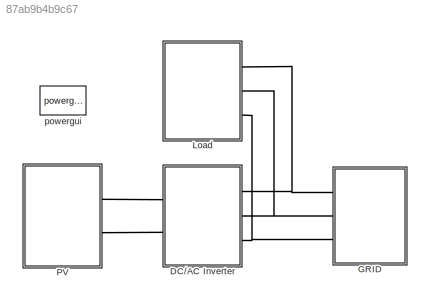
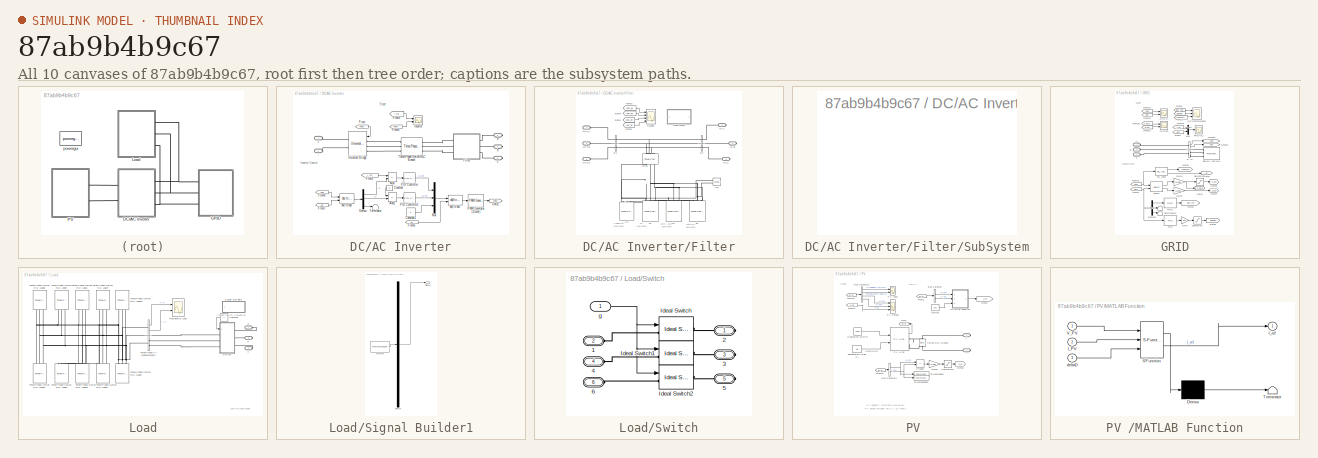
[diagram: thumbnail index - all 10 canvases of the model, root first then tree order]
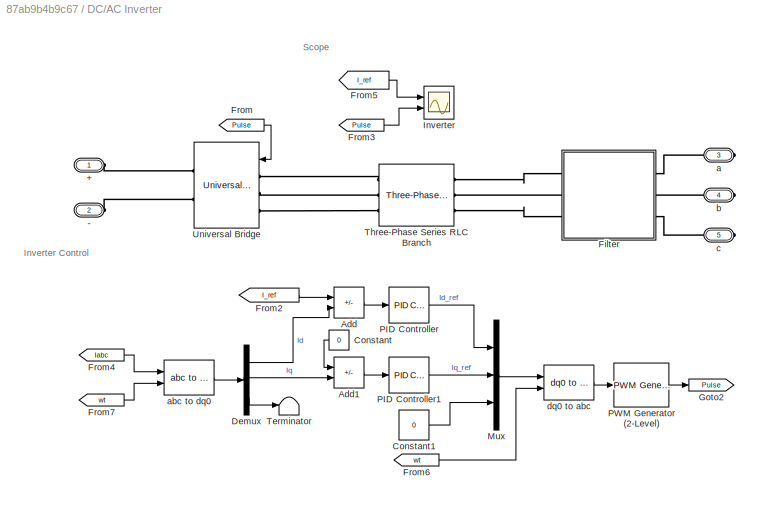
MODEL slx_87ab9b4b9c67
KIND model
CONFIG AbsTol = auto
CONFIG EnableMultiTasking = off
CONFIG FixedStep = auto
CONFIG MaxStep = auto
CONFIG MinStep = auto
CONFIG PreLoadFcn = Pmin = 50e3*.15; \nV = 380; \nf = 60; \nfsw = 5e3; \nLf = ((.1*V^2)/(2*pi*f*Pmin));\nRLf = Lf*25;
CONFIG RelTol = 1e-3
CONFIG SampleTimeConstraint = Unconstrained
CONFIG SolverName = VariableStepAuto
CONFIG StartTime = 0.0
CONFIG StopTime = 1
BLOCK [SubSystem] DC//AC Inverter
  Ports = [0, 0, 0, 0, 0, 2, 3]
  RequestExecContextInheritance = off
BLOCK [PMIOPort] DC//AC Inverter/+
  Side = Left
BLOCK [PMIOPort] DC//AC Inverter/-
  Port = 2
  Side = Left
BLOCK [Sum] DC//AC Inverter/Add
  IconShape = rectangular
  Inputs = +-
  Ports = [2, 1]
BLOCK [Sum] DC//AC Inverter/Add1
  IconShape = rectangular
  Inputs = +-
  Ports = [2, 1]
BLOCK [Constant] DC//AC Inverter/Constant
  NameLocation = top
  Value = 0
BLOCK [Constant] DC//AC Inverter/Constant1
  Value = 0
BLOCK [Demux] DC//AC Inverter/Demux
  Outputs = 3
  Ports = [1, 3]
BLOCK [SubSystem] DC//AC Inverter/Filter
  Ports = [0, 0, 0, 0, 0, 3, 3]
  RequestExecContextInheritance = off
BLOCK [Reference] DC//AC Inverter/Filter/B1  REF=spsThreePhaseVIMeasurementLib/Three-Phase
V-I Measurement
  NameLocation = top
  Ports = [0, 0, 0, 0, 0, 3, 3]
  SourceBlock = spsThreePhaseVIMeasurementLib/Three-Phase\nV-I Measurement
  SourceProductBaseCode = PS
  SourceType = Three-Phase VI Measurement
BLOCK [Reference] DC//AC Inverter/Filter/B2   REF=spsThreePhaseVIMeasurementLib/Three-Phase
V-I Measurement
  NameLocation = top
  Ports = [0, 0, 0, 0, 0, 3, 3]
  SourceBlock = spsThreePhaseVIMeasurementLib/Three-Phase\nV-I Measurement
  SourceProductBaseCode = PS
  SourceType = Three-Phase VI Measurement
BLOCK [Reference] DC//AC Inverter/Filter/Brk1  REF=spsThreePhaseBreakerLib/Three-Phase Breaker
  AttributesFormatString = \n
  NameLocation = left
  Ports = [0, 0, 0, 0, 0, 3, 3]
  SourceBlock = spsThreePhaseBreakerLib/Three-Phase Breaker
  SourceProductBaseCode = PS
  SourceType = Three-Phase Breaker
BLOCK [Reference] DC//AC Inverter/Filter/C1  REF=spsThreePhaseSeriesRLCLoadLib/Three-Phase
Series RLC Load
  AttributesFormatString = \n
  NameLocation = left
  Ports = [0, 0, 0, 0, 0, 3]
  SourceBlock = spsThreePhaseSeriesRLCLoadLib/Three-Phase\nSeries RLC Load
  SourceProductBaseCode = PS
  SourceType = Three-Phase Series RLC Load
BLOCK [Reference] DC//AC Inverter/Filter/F1   REF=spsThreePhaseHarmonicFilterLib/Three-Phase
Harmonic Filter
  AttributesFormatString = \n
  NameLocation = left
  Ports = [0, 0, 0, 0, 0, 3]
  SourceBlock = spsThreePhaseHarmonicFilterLib/Three-Phase\nHarmonic Filter
  SourceProductBaseCode = PS
  SourceType = Three-Phase Harmonic Filter
BLOCK [Reference] DC//AC Inverter/Filter/F2  REF=spsThreePhaseHarmonicFilterLib/Three-Phase
Harmonic Filter
  AttributesFormatString = \n
  NameLocation = left
  Ports = [0, 0, 0, 0, 0, 3]
  SourceBlock = spsThreePhaseHarmonicFilterLib/Three-Phase\nHarmonic Filter
  SourceProductBaseCode = PS
  SourceType = Three-Phase Harmonic Filter
BLOCK [Reference] DC//AC Inverter/Filter/F3  REF=spsThreePhaseHarmonicFilterLib/Three-Phase
Harmonic Filter
  AttributesFormatString = \n
  NameLocation = left
  Ports = [0, 0, 0, 0, 0, 3]
  SourceBlock = spsThreePhaseHarmonicFilterLib/Three-Phase\nHarmonic Filter
  SourceProductBaseCode = PS
  SourceType = Three-Phase Harmonic Filter
BLOCK [From] DC//AC Inverter/Filter/From1
  CloseFcn = tagdialog Close
  GotoTag = Vabc_B2
  TagVisibility = global
BLOCK [From] DC//AC Inverter/Filter/From3
  CloseFcn = tagdialog Close
  GotoTag = Vabc_B1
  TagVisibility = global
BLOCK [From] DC//AC Inverter/Filter/From4
  CloseFcn = tagdialog Close
  GotoTag = Iabc_B1
  TagVisibility = global
BLOCK [From] DC//AC Inverter/Filter/From5
  CloseFcn = tagdialog Close
  GotoTag = Iabc_B2
  TagVisibility = global
BLOCK [Reference] DC//AC Inverter/Filter/IM1  REF=spsImpedanceMeasurementLib/Impedance Measurement
  Ports = [0, 0, 0, 0, 0, 2]
  SourceBlock = spsImpedanceMeasurementLib/Impedance Measurement
  SourceProductBaseCode = PS
  SourceType = Impedance Measurement
BLOCK [PMIOPort] DC//AC Inverter/Filter/IN_A
  Port = 2
  Side = Right
BLOCK [PMIOPort] DC//AC Inverter/Filter/IN_B
  Port = 4
  Side = Right
BLOCK [PMIOPort] DC//AC Inverter/Filter/IN_C
  Port = 6
  Side = Right
BLOCK [PMIOPort] DC//AC Inverter/Filter/OUT_A
  Side = Left
BLOCK [PMIOPort] DC//AC Inverter/Filter/OUT_B
  Port = 3
  Side = Left
BLOCK [PMIOPort] DC//AC Inverter/Filter/OUT_C
  NameLocation = left
  Port = 5
  Side = Left
BLOCK [Scope] DC//AC Inverter/Filter/Scope1
  Floating = off
  NumInputPorts = 4
  Ports = [4]
  ScopeSpecificationString = Simulink.scopes.TimeScopeBlockCfg('CurrentConfiguration', extmgr.ConfigurationSet(extmgr.Configuration('Core','General UI',true),extmgr.Configuration('Core','Source UI',true),extmgr.Configuration('Sources','WiredSimulink',true,'DataLogging',true,'DataLoggingVariableName','Scope1','DataLoggingSaveFormat','StructureWithTime','DataLoggingDecimation','1','DataLoggingDecimateData',true),extmgr.Configur...<+3862ch>
BLOCK [SubSystem] DC//AC Inverter/Filter/SubSystem
  OpenFcn = openfig('filters_impedance.fig');
  Ports = []
  RequestExecContextInheritance = off
BLOCK [From] DC//AC Inverter/From
  GotoTag = Pulse
  TagVisibility = global
BLOCK [From] DC//AC Inverter/From2
  GotoTag = I_ref
  TagVisibility = global
BLOCK [From] DC//AC Inverter/From3
  GotoTag = Pulse
  TagVisibility = global
BLOCK [From] DC//AC Inverter/From4
  GotoTag = Iabc
  TagVisibility = global
BLOCK [From] DC//AC Inverter/From5
  GotoTag = I_ref
  TagVisibility = global
BLOCK [From] DC//AC Inverter/From6
  GotoTag = wt
  TagVisibility = global
BLOCK [From] DC//AC Inverter/From7
  GotoTag = wt
  TagVisibility = global
BLOCK [Goto] DC//AC Inverter/Goto2
  GotoTag = Pulse
  TagVisibility = global
BLOCK [Scope] DC//AC Inverter/Inverter
  Floating = off
  NumInputPorts = 2
  Ports = [2]
  ScopeSpecificationString = Simulink.scopes.TimeScopeBlockCfg('CurrentConfiguration', extmgr.ConfigurationSet(extmgr.Configuration('Core','General UI',true,'FigureColor',[1 1 1]),extmgr.Configuration('Core','Source UI',true),extmgr.Configuration('Sources','WiredSimulink',true,'DataLoggingVariableName','ScopeData1'),extmgr.Configuration('Visuals','Time Domain',true,'SerializedDisplays',{struct('MinYLimReal','90.04875','MaxYLi...<+2418ch>
BLOCK [Mux] DC//AC Inverter/Mux
  DisplayOption = bar
  Inputs = 3
  Ports = [3, 1]
BLOCK [Reference] DC//AC Inverter/PID Controller  REF=pid_lib/PID Controller
  Ports = [1, 1]
  SourceBlock = pid_lib/PID Controller
  SourceProductBaseCode = SL
  SourceType = PID 1dof
BLOCK [Reference] DC//AC Inverter/PID Controller1  REF=pid_lib/PID Controller
  Ports = [1, 1]
  SourceBlock = pid_lib/PID Controller
  SourceProductBaseCode = SL
  SourceType = PID 1dof
BLOCK [Reference] DC//AC Inverter/PWM Generator (2-Level)  REF=spsPWMGenerator2LevelLib/PWM Generator
(2-Level)
  Ports = [1, 1]
  SourceBlock = spsPWMGenerator2LevelLib/PWM Generator\n(2-Level)
  SourceProductBaseCode = PS
  SourceType = PWM Generator (2-Level)
BLOCK [Terminator] DC//AC Inverter/Terminator
BLOCK [Reference] DC//AC Inverter/Three-Phase Series RLC Branch  REF=spsThreePhaseSeriesRLCBranchLib/Three-Phase
Series RLC Branch
  AttributesFormatString = \n
  Ports = [0, 0, 0, 0, 0, 3, 3]
  SourceBlock = spsThreePhaseSeriesRLCBranchLib/Three-Phase\nSeries RLC Branch
  SourceProductBaseCode = PS
  SourceType = Three-Phase Series RLC Branch
BLOCK [Reference] DC//AC Inverter/Universal Bridge  REF=spsUniversalBridgeLib/Universal Bridge
  Ports = [1, 0, 0, 0, 0, 3, 2]
  SourceBlock = spsUniversalBridgeLib/Universal Bridge
  SourceProductBaseCode = PS
  SourceType = Universal Bridge
BLOCK [PMIOPort] DC//AC Inverter/a
  Port = 3
  Side = Right
BLOCK [Reference] DC//AC Inverter/abc to dq0  REF=spsabctodq0Lib/abc to dq0
  Ports = [2, 1]
  SourceBlock = spsabctodq0Lib/abc to dq0
  SourceProductBaseCode = PS
  SourceType = abc to dq0 Transformation
BLOCK [PMIOPort] DC//AC Inverter/b
  Port = 4
  Side = Right
BLOCK [PMIOPort] DC//AC Inverter/c
  Port = 5
  Side = Right
BLOCK [Reference] DC//AC Inverter/dq0 to abc  REF=spsdq0toabcLib/dq0 to abc
  Ports = [2, 1]
  SourceBlock = spsdq0toabcLib/dq0 to abc
  SourceProductBaseCode = PS
  SourceType = dq0 to abc Transformation
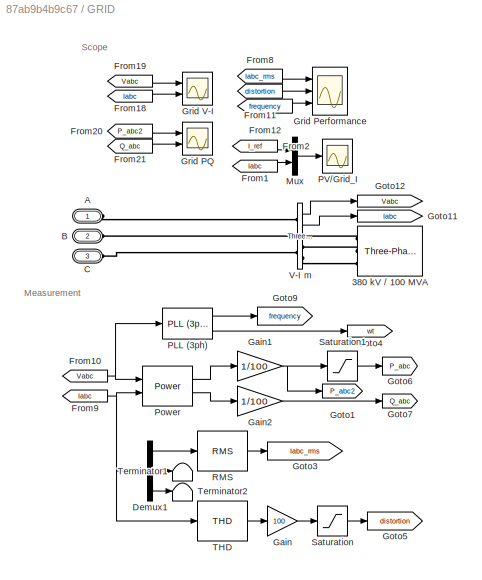
BLOCK [SubSystem] GRID
  Ports = [0, 0, 0, 0, 0, 3]
  RequestExecContextInheritance = off
BLOCK [Reference] GRID/380 kV // 100 MVA  REF=spsThreePhaseSourceLib/Three-Phase Source
  Ports = [0, 0, 0, 0, 0, 0, 3]
  SourceBlock = spsThreePhaseSourceLib/Three-Phase Source
  SourceProductBaseCode = PS
  SourceType = Three-Phase Source
BLOCK [PMIOPort] GRID/A
  Side = Left
BLOCK [PMIOPort] GRID/B
  Port = 2
  Side = Left
BLOCK [PMIOPort] GRID/C
  Port = 3
  Side = Left
BLOCK [Demux] GRID/Demux1
  Outputs = 3
  Ports = [1, 3]
BLOCK [From] GRID/From1
  GotoTag = Iabc
  NameLocation = top
  TagVisibility = global
BLOCK [From] GRID/From10
  GotoTag = Vabc
  TagVisibility = global
BLOCK [From] GRID/From11
  GotoTag = distortion
  TagVisibility = global
BLOCK [From] GRID/From12
  GotoTag = frequency
  NameLocation = top
  TagVisibility = global
BLOCK [From] GRID/From18
  GotoTag = Iabc
  NameLocation = top
  TagVisibility = global
BLOCK [From] GRID/From19
  GotoTag = Vabc
  NameLocation = top
  TagVisibility = global
BLOCK [From] GRID/From2
  GotoTag = I_ref
  NameLocation = top
  TagVisibility = global
BLOCK [From] GRID/From20
  GotoTag = P_abc2
  TagVisibility = global
BLOCK [From] GRID/From21
  GotoTag = Q_abc
  TagVisibility = global
BLOCK [From] GRID/From8
  GotoTag = Iabc_rms
  TagVisibility = global
BLOCK [From] GRID/From9
  GotoTag = Iabc
  TagVisibility = global
BLOCK [Gain] GRID/Gain
  Gain = 100
BLOCK [Gain] GRID/Gain1
  Gain = 1/100
BLOCK [Gain] GRID/Gain2
  Gain = 1/100
BLOCK [Goto] GRID/Goto1
  GotoTag = P_abc2
  TagVisibility = global
BLOCK [Goto] GRID/Goto11
  GotoTag = Iabc
  TagVisibility = global
BLOCK [Goto] GRID/Goto12
  GotoTag = Vabc
  NameLocation = top
  TagVisibility = global
BLOCK [Goto] GRID/Goto3
  GotoTag = Iabc_rms
  TagVisibility = global
BLOCK [Goto] GRID/Goto4
  GotoTag = wt
  TagVisibility = global
BLOCK [Goto] GRID/Goto5
  GotoTag = distortion
  TagVisibility = global
BLOCK [Goto] GRID/Goto6
  GotoTag = P_abc
  TagVisibility = global
BLOCK [Goto] GRID/Goto7
  GotoTag = Q_abc
  TagVisibility = global
BLOCK [Goto] GRID/Goto9
  GotoTag = frequency
  TagVisibility = global
BLOCK [Scope] GRID/Grid PQ
  Floating = off
  NumInputPorts = 2
  Ports = [2]
  ScopeSpecificationString = Simulink.scopes.TimeScopeBlockCfg('CurrentConfiguration', extmgr.ConfigurationSet(extmgr.Configuration('Core','General UI',true,'FigureColor',[1 1 1]),extmgr.Configuration('Core','Source UI',true),extmgr.Configuration('Sources','WiredSimulink',true,'DataLoggingVariableName','ScopeData5'),extmgr.Configuration('Visuals','Time Domain',true,'SerializedDisplays',{struct('MinYLimReal','-196.63776','MaxY...<+3254ch>
BLOCK [Scope] GRID/Grid Performance
  Floating = off
  NumInputPorts = 3
  Ports = [3]
  ScopeSpecificationString = Simulink.scopes.TimeScopeBlockCfg('CurrentConfiguration', extmgr.ConfigurationSet(extmgr.Configuration('Core','General UI',true,'FigureColor',[1 1 1]),extmgr.Configuration('Core','Source UI',true),extmgr.Configuration('Sources','WiredSimulink',true,'DataLoggingVariableName','ScopeData2'),extmgr.Configuration('Visuals','Time Domain',true,'SerializedDisplays',{struct('MinYLimReal','7.49422','MaxYLim...<+3613ch>
BLOCK [Scope] GRID/Grid V-I
  Floating = off
  NumInputPorts = 2
  Ports = [2]
  ScopeSpecificationString = Simulink.scopes.TimeScopeBlockCfg('CurrentConfiguration', extmgr.ConfigurationSet(extmgr.Configuration('Core','General UI',true,'FigureColor',[1 1 1]),extmgr.Configuration('Core','Source UI',true),extmgr.Configuration('Sources','WiredSimulink',true,'DataLoggingVariableName','ScopeData4'),extmgr.Configuration('Visuals','Time Domain',true,'SerializedDisplays',{struct('MinYLimReal','-388.83385','MaxY...<+3276ch>
BLOCK [Mux] GRID/Mux
  DisplayOption = bar
  Inputs = 2
  Ports = [2, 1]
BLOCK [Reference] GRID/PLL (3ph)  REF=spsPLL3phLib/PLL
(3ph)
  Ports = [1, 2]
  SourceBlock = spsPLL3phLib/PLL\n(3ph)
  SourceProductBaseCode = PS
  SourceType = PLL (3ph)
BLOCK [Scope] GRID/PV//Grid_I
  Floating = off
  NumInputPorts = 1
  Ports = [1]
  ScopeSpecificationString = Simulink.scopes.TimeScopeBlockCfg('CurrentConfiguration', extmgr.ConfigurationSet(extmgr.Configuration('Core','General UI',true,'FigureColor',[1 1 1]),extmgr.Configuration('Core','Source UI',true),extmgr.Configuration('Sources','WiredSimulink',true,'DataLoggingVariableName','ScopeData3'),extmgr.Configuration('Visuals','Time Domain',true,'SerializedDisplays',{struct('MinYLimReal','-245.43511','MaxY...<+1991ch>
BLOCK [Reference] GRID/Power  REF=spsPowerLib/Power
  Ports = [2, 2]
  SourceBlock = spsPowerLib/Power
  SourceProductBaseCode = PS
  SourceType = Power
BLOCK [Reference] GRID/RMS  REF=spsRMSLib/RMS
  NameLocation = top
  Ports = [1, 1]
  SourceBlock = spsRMSLib/RMS
  SourceProductBaseCode = PS
  SourceType = RMS
BLOCK [Saturate] GRID/Saturation
  LowerLimit = 0
  UpperLimit = 50
BLOCK [Saturate] GRID/Saturation1
  LowerLimit = 0
  UpperLimit = 60
BLOCK [Reference] GRID/THD  REF=spsTHDLib/THD
  Ports = [1, 1]
  SourceBlock = spsTHDLib/THD
  SourceProductBaseCode = PS
  SourceType = THD
BLOCK [Terminator] GRID/Terminator1
BLOCK [Terminator] GRID/Terminator2
BLOCK [Reference] GRID/V-I m  REF=spsThreePhaseVIMeasurementLib/Three-Phase
V-I Measurement
  Ports = [0, 2, 0, 0, 0, 3, 3]
  SourceBlock = spsThreePhaseVIMeasurementLib/Three-Phase\nV-I Measurement
  SourceProductBaseCode = PS
  SourceType = Three-Phase VI Measurement
BLOCK [SubSystem] Load
  Ports = [0, 0, 0, 0, 0, 0, 3]
  RequestExecContextInheritance = off
BLOCK [Constant] Load/Constant
  NameLocation = top
BLOCK [Scope] Load/Residential Load
  Floating = off
  NameLocation = top
  NumInputPorts = 2
  Ports = [2]
  ScopeSpecificationString = Simulink.scopes.TimeScopeBlockCfg('CurrentConfiguration', extmgr.ConfigurationSet(extmgr.Configuration('Core','General UI',true,'FigureColor',[1 1 1]),extmgr.Configuration('Core','Source UI',true),extmgr.Configuration('Sources','WiredSimulink',true,'DataLoggingVariableName','ScopeData3','DataLoggingSaveFormat','StructureWithTime','DataLoggingDecimation','1','DataLoggingDecimateData',true),extmgr.C...<+3000ch>
BLOCK [SubSystem] Load/Signal Builder1
  ClipboardFcn = sigbuilder_block('clipboard');
  CloseFcn = sigbuilder_block('close');
  Commented = on
  ContinueFcn = sigbuilder_block('continue');
  CopyFcn = sigbuilder_block('copy');
  DeleteFcn = sigbuilder_block('delete');
  LoadFcn = sigbuilder_block('load');
  MaskHideContents = on
  ModelCloseFcn = sigbuilder_block('modelClose');
  NameChangeFcn = sigbuilder_block('namechange');
  NameLocation = top
  OpenFcn = sigbuilder_block('open',[437.6 199.2 550.4 400 ]);
  PauseFcn = sigbuilder_block('pause');
  Ports = [0, 1]
  PreSaveFcn = sigbuilder_block('preSave');
  RequestExecContextInheritance = off
  StartFcn = sigbuilder_block('start');
  StopFcn = sigbuilder_block('stop');
  Tag = STV Subsys
BLOCK [Demux] Load/Signal Builder1/Demux
  DisplayOption = none
  Outputs = 1
  Ports = [1, 1]
  Tag = STV Demux
BLOCK [FromWorkspace] Load/Signal Builder1/FromWs
  Tag = STV FromWs
  VariableName = tuvar
BLOCK [Outport] Load/Signal Builder1/Signal 1
  Tag = STV Outport
BLOCK [SubSystem] Load/Switch
  Ports = [1, 0, 0, 0, 0, 3, 3]
  RequestExecContextInheritance = off
BLOCK [PMIOPort] Load/Switch/1
  Port = 2
  Side = Left
BLOCK [PMIOPort] Load/Switch/2
  Side = Right
BLOCK [PMIOPort] Load/Switch/3
  Port = 3
  Side = Right
BLOCK [PMIOPort] Load/Switch/4
  Port = 4
  Side = Left
BLOCK [PMIOPort] Load/Switch/5
  Port = 5
  Side = Right
BLOCK [PMIOPort] Load/Switch/6
  Port = 6
  Side = Left
BLOCK [Reference] Load/Switch/Ideal Switch  REF=spsIdealSwitchLib/Ideal Switch
  Ports = [1, 0, 0, 0, 0, 1, 1]
  SourceBlock = spsIdealSwitchLib/Ideal Switch
  SourceProductBaseCode = PS
  SourceType = Ideal Switch
BLOCK [Reference] Load/Switch/Ideal Switch1  REF=spsIdealSwitchLib/Ideal Switch
  Ports = [1, 0, 0, 0, 0, 1, 1]
  SourceBlock = spsIdealSwitchLib/Ideal Switch
  SourceProductBaseCode = PS
  SourceType = Ideal Switch
BLOCK [Reference] Load/Switch/Ideal Switch2  REF=spsIdealSwitchLib/Ideal Switch
  Ports = [1, 0, 0, 0, 0, 1, 1]
  SourceBlock = spsIdealSwitchLib/Ideal Switch
  SourceProductBaseCode = PS
  SourceType = Ideal Switch
BLOCK [Inport] Load/Switch/g
BLOCK [Reference] Load/Three-Phase Series RLC Load1  REF=spsThreePhaseSeriesRLCLoadLib/Three-Phase
Series RLC Load
  AttributesFormatString = \n
  NameLocation = left
  Ports = [0, 0, 0, 0, 0, 3]
  SourceBlock = spsThreePhaseSeriesRLCLoadLib/Three-Phase\nSeries RLC Load
  SourceProductBaseCode = PS
  SourceType = Three-Phase Series RLC Load
BLOCK [Reference] Load/Three-Phase Series RLC Load10  REF=spsThreePhaseSeriesRLCLoadLib/Three-Phase
Series RLC Load
  AttributesFormatString = \n
  NameLocation = right
  Ports = [0, 0, 0, 0, 0, 3]
  SourceBlock = spsThreePhaseSeriesRLCLoadLib/Three-Phase\nSeries RLC Load
  SourceProductBaseCode = PS
  SourceType = Three-Phase Series RLC Load
BLOCK [Reference] Load/Three-Phase Series RLC Load11  REF=spsThreePhaseSeriesRLCLoadLib/Three-Phase
Series RLC Load
  AttributesFormatString = \n
  NameLocation = right
  Ports = [0, 0, 0, 0, 0, 3]
  SourceBlock = spsThreePhaseSeriesRLCLoadLib/Three-Phase\nSeries RLC Load
  SourceProductBaseCode = PS
  SourceType = Three-Phase Series RLC Load
BLOCK [Reference] Load/Three-Phase Series RLC Load13  REF=spsThreePhaseSeriesRLCLoadLib/Three-Phase
Series RLC Load
  AttributesFormatString = \n
  NameLocation = left
  Ports = [0, 0, 0, 0, 0, 3]
  SourceBlock = spsThreePhaseSeriesRLCLoadLib/Three-Phase\nSeries RLC Load
  SourceProductBaseCode = PS
  SourceType = Three-Phase Series RLC Load
BLOCK [Reference] Load/Three-Phase Series RLC Load3  REF=spsThreePhaseSeriesRLCLoadLib/Three-Phase
Series RLC Load
  AttributesFormatString = \n
  NameLocation = right
  Ports = [0, 0, 0, 0, 0, 3]
  SourceBlock = spsThreePhaseSeriesRLCLoadLib/Three-Phase\nSeries RLC Load
  SourceProductBaseCode = PS
  SourceType = Three-Phase Series RLC Load
BLOCK [Reference] Load/Three-Phase Series RLC Load4  REF=spsThreePhaseSeriesRLCLoadLib/Three-Phase
Series RLC Load
  AttributesFormatString = \n
  NameLocation = left
  Ports = [0, 0, 0, 0, 0, 3]
  SourceBlock = spsThreePhaseSeriesRLCLoadLib/Three-Phase\nSeries RLC Load
  SourceProductBaseCode = PS
  SourceType = Three-Phase Series RLC Load
BLOCK [Reference] Load/Three-Phase Series RLC Load5  REF=spsThreePhaseSeriesRLCLoadLib/Three-Phase
Series RLC Load
  AttributesFormatString = \n
  NameLocation = right
  Ports = [0, 0, 0, 0, 0, 3]
  SourceBlock = spsThreePhaseSeriesRLCLoadLib/Three-Phase\nSeries RLC Load
  SourceProductBaseCode = PS
  SourceType = Three-Phase Series RLC Load
BLOCK [Reference] Load/Three-Phase Series RLC Load7  REF=spsThreePhaseSeriesRLCLoadLib/Three-Phase
Series RLC Load
  AttributesFormatString = \n
  NameLocation = left
  Ports = [0, 0, 0, 0, 0, 3]
  SourceBlock = spsThreePhaseSeriesRLCLoadLib/Three-Phase\nSeries RLC Load
  SourceProductBaseCode = PS
  SourceType = Three-Phase Series RLC Load
BLOCK [Reference] Load/Three-Phase Series RLC Load8  REF=spsThreePhaseSeriesRLCLoadLib/Three-Phase
Series RLC Load
  AttributesFormatString = \n
  NameLocation = left
  Ports = [0, 0, 0, 0, 0, 3]
  SourceBlock = spsThreePhaseSeriesRLCLoadLib/Three-Phase\nSeries RLC Load
  SourceProductBaseCode = PS
  SourceType = Three-Phase Series RLC Load
BLOCK [Reference] Load/Three-Phase Series RLC Load9  REF=spsThreePhaseSeriesRLCLoadLib/Three-Phase
Series RLC Load
  AttributesFormatString = \n
  NameLocation = right
  Ports = [0, 0, 0, 0, 0, 3]
  SourceBlock = spsThreePhaseSeriesRLCLoadLib/Three-Phase\nSeries RLC Load
  SourceProductBaseCode = PS
  SourceType = Three-Phase Series RLC Load
BLOCK [Reference] Load/Three-Phase V-I Measurement1  REF=spsThreePhaseVIMeasurementLib/Three-Phase
V-I Measurement
  Ports = [0, 2, 0, 0, 0, 3, 3]
  SourceBlock = spsThreePhaseVIMeasurementLib/Three-Phase\nV-I Measurement
  SourceProductBaseCode = PS
  SourceType = Three-Phase VI Measurement
BLOCK [PMIOPort] Load/a
  Side = Right
BLOCK [PMIOPort] Load/b
  Port = 2
  Side = Right
BLOCK [PMIOPort] Load/c
  Port = 3
  Side = Right
BLOCK [SubSystem] PV 
  Ports = [0, 0, 0, 0, 0, 0, 2]
  RequestExecContextInheritance = off
BLOCK [PMIOPort] PV /+
  Side = Right
BLOCK [PMIOPort] PV /-
  NameLocation = top
  Port = 2
  Side = Right
BLOCK [BusSelector] PV /Bus Selector
  OutputSignals = V_PV,I_PV
  Ports = [1, 2]
BLOCK [BusSelector] PV /Bus Selector1
  OutputSignals = Irradiance (W/m2),Temperature (deg C),V_PV,I_PV
  Ports = [1, 4]
BLOCK [BusSelector] PV /Bus Selector2
  OutputSignals = V_PV,I_PV
  Ports = [1, 2]
BLOCK [Constant] PV /DeltaD
  Value = 0.01
BLOCK [From] PV /From1
  GotoTag = PV_m
  NameLocation = top
  TagVisibility = global
BLOCK [From] PV /From15
  GotoTag = PV_m
  NameLocation = top
  TagVisibility = global
BLOCK [From] PV /From16
  GotoTag = PV_m
  NameLocation = top
  TagVisibility = global
BLOCK [From] PV /From17
  GotoTag = P_pv
  TagVisibility = global
BLOCK [Gain] PV /Gain3
  Gain = 1/100
BLOCK [Goto] PV /Goto
  GotoTag = PV_m
  NameLocation = top
  TagVisibility = global
BLOCK [Goto] PV /Goto1
  GotoTag = I_ref
  TagVisibility = global
BLOCK [Goto] PV /Goto8
  GotoTag = P_pv
  TagVisibility = global
BLOCK [Constant] PV /Irradiation (W//m^2)
  Value = 1000
BLOCK [SubSystem] PV /MATLAB Function
  ErrorFcn = Stateflow.Translate.translate
  PermitHierarchicalResolution = ExplicitOnly
  Ports = [3, 1]
  RequestExecContextInheritance = off
  SFBlockType = MATLAB Function
  TreatAsAtomicUnit = on
BLOCK [Demux] PV /MATLAB Function/ Demux 
  Outputs = 1
  Ports = [1, 1]
BLOCK [S-Function] PV /MATLAB Function/ SFunction 
  EnableBusSupport = on
  FunctionName = sf_sfun
  PortCounts = [3 2]
  Ports = [3, 2]
  SFcnIsStateOwnerBlock = off
  SFunctionDeploymentMode = off
  Tag = Stateflow S-Function 2
BLOCK [Terminator] PV /MATLAB Function/ Terminator 
BLOCK [Inport] PV /MATLAB Function/I_PV
  Port = 2
BLOCK [Outport] PV /MATLAB Function/I_ref
BLOCK [Inport] PV /MATLAB Function/V_PV
BLOCK [Inport] PV /MATLAB Function/deltaD
  Port = 3
BLOCK [Reference] PV /PV Array  REF=spsPVArrayLib/PV Array
  Ports = [2, 1, 0, 0, 0, 0, 2]
  SourceBlock = spsPVArrayLib/PV Array
  SourceProductBaseCode = PS
  SourceType = PV array
BLOCK [Scope] PV /PV Input
  Floating = off
  NumInputPorts = 2
  Ports = [2]
  ScopeSpecificationString = Simulink.scopes.TimeScopeBlockCfg('CurrentConfiguration', extmgr.ConfigurationSet(extmgr.Configuration('Core','General UI',true,'FigureColor',[1 1 1]),extmgr.Configuration('Core','Source UI',true),extmgr.Configuration('Sources','WiredSimulink',true,'DataLoggingVariableName','ScopeData1'),extmgr.Configuration('Visuals','Time Domain',true,'SerializedDisplays',{struct('MinYLimReal','-124.06492','MaxY...<+2427ch>
BLOCK [Scope] PV /PV Output
  Floating = off
  NumInputPorts = 3
  Ports = [3]
  ScopeSpecificationString = Simulink.scopes.TimeScopeBlockCfg('CurrentConfiguration', extmgr.ConfigurationSet(extmgr.Configuration('Core','General UI',true,'FigureColor',[1 1 1]),extmgr.Configuration('Core','Source UI',true),extmgr.Configuration('Sources','WiredSimulink',true,'DataLoggingVariableName','ScopeData2'),extmgr.Configuration('Visuals','Time Domain',true,'SerializedDisplays',{struct('MinYLimReal','-124.94237','MaxY...<+3218ch>
BLOCK [Product] PV /Product
  Ports = [2, 1]
BLOCK [Saturate] PV /Saturation2
  LowerLimit = 0
  UpperLimit = 60
BLOCK [Reference] PV /Series RLC Branch  REF=spsSeriesRLCBranchLib/Series RLC Branch
  NameLocation = left
  Ports = [0, 0, 0, 0, 0, 1, 1]
  SourceBlock = spsSeriesRLCBranchLib/Series RLC Branch
  SourceProductBaseCode = PS
  SourceType = Series RLC Branch
BLOCK [Constant] PV /Temperature (Deg. C)
  Value = 28
BLOCK [ToWorkspace] PV /To Workspace
  FixptAsFi = on
  MaxDataPoints = inf
  Ports = [1]
  SampleTime = -1
  SaveFormat = Timeseries
  VariableName = V_PV
BLOCK [ToWorkspace] PV /To Workspace1
  FixptAsFi = on
  MaxDataPoints = inf
  Ports = [1]
  SampleTime = -1
  SaveFormat = Timeseries
  VariableName = I_PV
BLOCK [Reference] powergui  REF=spspowerguiLib/powergui
  Ports = []
  Priority = 1
  SourceBlock = spspowerguiLib/powergui
  SourceProductBaseCode = PS
  SourceType = PSB option menu block
ANNOTATION DC//AC Inverter: Inverter Control
ANNOTATION DC//AC Inverter: Scope
ANNOTATION DC//AC Inverter/Filter: 11th / 13th (150 Mvar)
ANNOTATION DC//AC Inverter/Filter: 24th HP 150 Mvar)
ANNOTATION DC//AC Inverter/Filter: 3C (150 Mvar)
ANNOTATION DC//AC Inverter/Filter: Capacitor (150 Mvar)
ANNOTATION GRID: Measurement
ANNOTATION GRID: Scope
ANNOTATION Load: 1 means load on, 0 means off
ANNOTATION Load: 100 KW Load Model
ANNOTATION PV : MPPT
ANNOTATION PV : Measurement
ANNOTATION PV : PV capacity: 21*21*230.5 =101.65 kW
ANNOTATION PV : PV output voltage: 40.5 V * 21 = 850 V
ANNOTATION PV : Scope
LINE DC//AC Inverter/Add1:1 -> DC//AC Inverter/PID Controller1:1
LINE DC//AC Inverter/Add:1 -> DC//AC Inverter/PID Controller:1
LINE DC//AC Inverter/Constant1:1 -> DC//AC Inverter/Mux:3
LINE DC//AC Inverter/Constant:1 -> DC//AC Inverter/Add1:1
LINE DC//AC Inverter/Demux:1 -> DC//AC Inverter/Add:2
LINE DC//AC Inverter/Demux:2 -> DC//AC Inverter/Add1:2
LINE DC//AC Inverter/Demux:3 -> DC//AC Inverter/Terminator:1
LINE DC//AC Inverter/Filter/From1:1 -> DC//AC Inverter/Filter/Scope1:3
LINE DC//AC Inverter/Filter/From3:1 -> DC//AC Inverter/Filter/Scope1:1
LINE DC//AC Inverter/Filter/From4:1 -> DC//AC Inverter/Filter/Scope1:2
LINE DC//AC Inverter/Filter/From5:1 -> DC//AC Inverter/Filter/Scope1:4
LINE DC//AC Inverter/From2:1 -> DC//AC Inverter/Add:1
LINE DC//AC Inverter/From3:1 -> DC//AC Inverter/Inverter:2
LINE DC//AC Inverter/From4:1 -> DC//AC Inverter/abc to dq0:1
LINE DC//AC Inverter/From5:1 -> DC//AC Inverter/Inverter:1
LINE DC//AC Inverter/From6:1 -> DC//AC Inverter/dq0 to abc:2
LINE DC//AC Inverter/From7:1 -> DC//AC Inverter/abc to dq0:2
LINE DC//AC Inverter/From:1 -> DC//AC Inverter/Universal Bridge:1
LINE DC//AC Inverter/Mux:1 -> DC//AC Inverter/dq0 to abc:1
LINE DC//AC Inverter/PID Controller1:1 -> DC//AC Inverter/Mux:2
LINE DC//AC Inverter/PID Controller:1 -> DC//AC Inverter/Mux:1
LINE DC//AC Inverter/PWM Generator (2-Level):1 -> DC//AC Inverter/Goto2:1
LINE DC//AC Inverter/abc to dq0:1 -> DC//AC Inverter/Demux:1
LINE DC//AC Inverter/dq0 to abc:1 -> DC//AC Inverter/PWM Generator (2-Level):1
LINE GRID/Demux1:1 -> GRID/RMS:1
LINE GRID/Demux1:2 -> GRID/Terminator1:1
LINE GRID/Demux1:3 -> GRID/Terminator2:1
NET GRID/From10:1 -> GRID/PLL (3ph):1, GRID/Power:1
LINE GRID/From11:1 -> GRID/Grid Performance:2
LINE GRID/From12:1 -> GRID/Grid Performance:3
LINE GRID/From18:1 -> GRID/Grid V-I:2
LINE GRID/From19:1 -> GRID/Grid V-I:1
LINE GRID/From1:1 -> GRID/Mux:2
LINE GRID/From20:1 -> GRID/Grid PQ:1
LINE GRID/From21:1 -> GRID/Grid PQ:2
LINE GRID/From2:1 -> GRID/Mux:1
LINE GRID/From8:1 -> GRID/Grid Performance:1
NET GRID/From9:1 -> GRID/Demux1:1, GRID/Power:2, GRID/THD:1
NET GRID/Gain1:1 -> GRID/Goto1:1, GRID/Saturation1:1
LINE GRID/Gain2:1 -> GRID/Goto7:1
LINE GRID/Gain:1 -> GRID/Saturation:1
LINE GRID/Mux:1 -> GRID/PV//Grid_I:1
LINE GRID/PLL (3ph):1 -> GRID/Goto9:1
LINE GRID/PLL (3ph):2 -> GRID/Goto4:1
LINE GRID/Power:1 -> GRID/Gain1:1
LINE GRID/Power:2 -> GRID/Gain2:1
LINE GRID/RMS:1 -> GRID/Goto3:1
LINE GRID/Saturation1:1 -> GRID/Goto6:1
LINE GRID/Saturation:1 -> GRID/Goto5:1
LINE GRID/THD:1 -> GRID/Gain:1
LINE GRID/V-I m:1 -> GRID/Goto12:1
LINE GRID/V-I m:2 -> GRID/Goto11:1
LINE Load/Constant:1 -> Load/Switch:1
NET Load/Switch/g:1 -> Load/Switch/Ideal Switch1:1, Load/Switch/Ideal Switch2:1, Load/Switch/Ideal Switch:1
LINE Load/Three-Phase V-I Measurement1:1 -> Load/Residential Load:1
LINE Load/Three-Phase V-I Measurement1:2 -> Load/Residential Load:2
LINE PV /Bus Selector1:1 -> PV /PV Input:1
LINE PV /Bus Selector1:2 -> PV /PV Input:2
LINE PV /Bus Selector1:3 -> PV /PV Output:1
LINE PV /Bus Selector1:4 -> PV /PV Output:2
NET PV /Bus Selector2:1 -> PV /Product:1, PV /To Workspace:1
NET PV /Bus Selector2:2 -> PV /Product:2, PV /To Workspace1:1
LINE PV /Bus Selector:1 -> PV /MATLAB Function:1
LINE PV /Bus Selector:2 -> PV /MATLAB Function:2
LINE PV /DeltaD:1 -> PV /MATLAB Function:3
LINE PV /From15:1 -> PV /Bus Selector2:1
LINE PV /From16:1 -> PV /Bus Selector1:1
LINE PV /From17:1 -> PV /PV Output:3
LINE PV /From1:1 -> PV /Bus Selector:1
LINE PV /Gain3:1 -> PV /Saturation2:1
LINE PV /Irradiation (W//m^2):1 -> PV /PV Array:1
LINE PV /MATLAB Function:1 -> PV /Goto1:1
LINE PV /PV Array:1 -> PV /Goto:1
LINE PV /Product:1 -> PV /Gain3:1
LINE PV /Saturation2:1 -> PV /Goto8:1
LINE PV /Temperature (Deg. C):1 -> PV /PV Array:2
PLINE DC//AC Inverter/+:RConn1 -- DC//AC Inverter/Universal Bridge:RConn1
PLINE DC//AC Inverter/-:RConn1 -- DC//AC Inverter/Universal Bridge:RConn2
PLINE DC//AC Inverter/Filter/B1:LConn1 -- DC//AC Inverter/Filter/OUT_A:RConn1
PLINE DC//AC Inverter/Filter/B1:LConn2 -- DC//AC Inverter/Filter/OUT_B:RConn1
PLINE DC//AC Inverter/Filter/B1:LConn3 -- DC//AC Inverter/Filter/OUT_C:RConn1
PNET net1: DC//AC Inverter/Filter/B1:RConn1 -- DC//AC Inverter/Filter/B2 :LConn1 -- DC//AC Inverter/Filter/Brk1:LConn1
PNET net2: DC//AC Inverter/Filter/B1:RConn2 -- DC//AC Inverter/Filter/B2 :LConn2 -- DC//AC Inverter/Filter/Brk1:LConn2
PNET net3: DC//AC Inverter/Filter/B1:RConn3 -- DC//AC Inverter/Filter/B2 :LConn3 -- DC//AC Inverter/Filter/Brk1:LConn3
PLINE DC//AC Inverter/Filter/B2 :RConn1 -- DC//AC Inverter/Filter/IN_A:RConn1
PLINE DC//AC Inverter/Filter/B2 :RConn2 -- DC//AC Inverter/Filter/IN_B:RConn1
PLINE DC//AC Inverter/Filter/B2 :RConn3 -- DC//AC Inverter/Filter/IN_C:RConn1
PNET net4: DC//AC Inverter/Filter/Brk1:RConn1 -- DC//AC Inverter/Filter/C1:LConn1 -- DC//AC Inverter/Filter/F1 :LConn1 -- DC//AC Inverter/Filter/F2:LConn1 -- DC//AC Inverter/Filter/F3:LConn1 -- DC//AC Inverter/Filter/IM1:LConn1
PNET net5: DC//AC Inverter/Filter/Brk1:RConn2 -- DC//AC Inverter/Filter/C1:LConn2 -- DC//AC Inverter/Filter/F1 :LConn2 -- DC//AC Inverter/Filter/F2:LConn2 -- DC//AC Inverter/Filter/F3:LConn2 -- DC//AC Inverter/Filter/IM1:LConn2
PNET net6: DC//AC Inverter/Filter/Brk1:RConn3 -- DC//AC Inverter/Filter/C1:LConn3 -- DC//AC Inverter/Filter/F1 :LConn3 -- DC//AC Inverter/Filter/F2:LConn3 -- DC//AC Inverter/Filter/F3:LConn3
PLINE DC//AC Inverter/Filter:LConn1 -- DC//AC Inverter/a:RConn1
PLINE DC//AC Inverter/Filter:LConn2 -- DC//AC Inverter/b:RConn1
PLINE DC//AC Inverter/Filter:LConn3 -- DC//AC Inverter/c:RConn1
PLINE DC//AC Inverter/Filter:RConn1 -- DC//AC Inverter/Three-Phase Series RLC Branch:RConn1
PLINE DC//AC Inverter/Filter:RConn2 -- DC//AC Inverter/Three-Phase Series RLC Branch:RConn2
PLINE DC//AC Inverter/Filter:RConn3 -- DC//AC Inverter/Three-Phase Series RLC Branch:RConn3
PLINE DC//AC Inverter/Three-Phase Series RLC Branch:LConn1 -- DC//AC Inverter/Universal Bridge:LConn1
PLINE DC//AC Inverter/Three-Phase Series RLC Branch:LConn2 -- DC//AC Inverter/Universal Bridge:LConn2
PLINE DC//AC Inverter/Three-Phase Series RLC Branch:LConn3 -- DC//AC Inverter/Universal Bridge:LConn3
PLINE DC//AC Inverter:LConn1 -- PV :RConn1
PLINE DC//AC Inverter:LConn2 -- PV :RConn2
PNET net7: DC//AC Inverter:RConn1 -- GRID:LConn1 -- Load:RConn1
PNET net8: DC//AC Inverter:RConn2 -- GRID:LConn2 -- Load:RConn2
PNET net9: DC//AC Inverter:RConn3 -- GRID:LConn3 -- Load:RConn3
PLINE GRID/380 kV // 100 MVA:RConn1 -- GRID/V-I m:RConn1
PLINE GRID/380 kV // 100 MVA:RConn2 -- GRID/V-I m:RConn2
PLINE GRID/380 kV // 100 MVA:RConn3 -- GRID/V-I m:RConn3
PLINE GRID/A:RConn1 -- GRID/V-I m:LConn1
PLINE GRID/B:RConn1 -- GRID/V-I m:LConn2
PLINE GRID/C:RConn1 -- GRID/V-I m:LConn3
PLINE Load/Switch/1:RConn1 -- Load/Switch/Ideal Switch:LConn1
PLINE Load/Switch/2:RConn1 -- Load/Switch/Ideal Switch:RConn1
PLINE Load/Switch/3:RConn1 -- Load/Switch/Ideal Switch1:RConn1
PLINE Load/Switch/4:RConn1 -- Load/Switch/Ideal Switch1:LConn1
PLINE Load/Switch/5:RConn1 -- Load/Switch/Ideal Switch2:RConn1
PLINE Load/Switch/6:RConn1 -- Load/Switch/Ideal Switch2:LConn1
PLINE Load/Switch:LConn1 -- Load/Three-Phase V-I Measurement1:RConn1
PLINE Load/Switch:LConn2 -- Load/Three-Phase V-I Measurement1:RConn2
PLINE Load/Switch:LConn3 -- Load/Three-Phase V-I Measurement1:RConn3
PLINE Load/Switch:RConn1 -- Load/a:RConn1
PLINE Load/Switch:RConn2 -- Load/b:RConn1
PLINE Load/Switch:RConn3 -- Load/c:RConn1
PNET net10: Load/Three-Phase Series RLC Load10:LConn1 -- Load/Three-Phase Series RLC Load11:LConn1 -- Load/Three-Phase Series RLC Load13:LConn1 -- Load/Three-Phase Series RLC Load1:LConn1 -- Load/Three-Phase Series RLC Load3:LConn1 -- Load/Three-Phase Series RLC Load4:LConn1 -- Load/Three-Phase Series RLC Load5:LConn1 -- Load/Three-Phase Series RLC Load7:LConn1 -- Load/Three-Phase Series RLC Load8:LConn1 -- Load/Three-Phase Series RLC Load9:LConn1 -- Load/Three-Phase V-I Measurement1:LConn1
PNET net11: Load/Three-Phase Series RLC Load10:LConn2 -- Load/Three-Phase Series RLC Load11:LConn2 -- Load/Three-Phase Series RLC Load13:LConn2 -- Load/Three-Phase Series RLC Load1:LConn2 -- Load/Three-Phase Series RLC Load3:LConn2 -- Load/Three-Phase Series RLC Load4:LConn2 -- Load/Three-Phase Series RLC Load5:LConn2 -- Load/Three-Phase Series RLC Load7:LConn2 -- Load/Three-Phase Series RLC Load8:LConn2 -- Load/Three-Phase Series RLC Load9:LConn2 -- Load/Three-Phase V-I Measurement1:LConn2
PNET net12: Load/Three-Phase Series RLC Load10:LConn3 -- Load/Three-Phase Series RLC Load11:LConn3 -- Load/Three-Phase Series RLC Load13:LConn3 -- Load/Three-Phase Series RLC Load1:LConn3 -- Load/Three-Phase Series RLC Load3:LConn3 -- Load/Three-Phase Series RLC Load4:LConn3 -- Load/Three-Phase Series RLC Load5:LConn3 -- Load/Three-Phase Series RLC Load7:LConn3 -- Load/Three-Phase Series RLC Load8:LConn3 -- Load/Three-Phase Series RLC Load9:LConn3 -- Load/Three-Phase V-I Measurement1:LConn3
PNET net13: PV /+:RConn1 -- PV /PV Array:RConn1 -- PV /Series RLC Branch:LConn1
PNET net14: PV /-:RConn1 -- PV /PV Array:RConn2 -- PV /Series RLC Branch:RConn1
note: NET lines group one-source signal fan-out (src -> all destinations, sorted); 1:1 wires keep LINE; PNET lines group multi-terminal physical nets as a canonical sorted terminal list (undirected conserving connections); 2-terminal nets keep the pairwise PLINE form
CHART PV /MATLAB Function states=1 transitions=1
  STATE_LABEL 'eML_blk_kernel()'
  STATE_LABEL "SCRIPT:\nfunction I_ref = mppt_alg(V_PV, I_PV, deltaD)\n\nIref_init = 100;\nI_min = 0;\nI_max = 150;\n\npersistent Vold Pold Iref_old;\n\n% dataType = 'double';\n\nif isempty(Vold)\n    Vold = 0;\n    Pold = 0;\n    Iref_old = Iref_init;\nend\n\nP = V_PV*I_PV;\ndV = V_PV-Vold;\ndP = P-Pold;\nI_ref = Iref_old;\n\nif dP ~= 0 && V_PV > 400\n    if dP < 0\n        if dV < 0\n            I_ref = Iref_old - deltaD;\n        else...<+326ch>"
CHART  states=0 transitions=0
